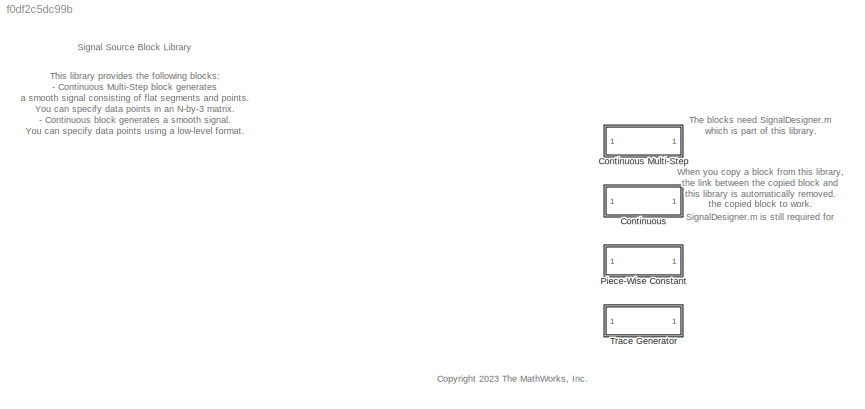
MODEL mdl_f0df2c5dc99b
KIND library
CONFIG AbsTol = auto
CONFIG EnableMultiTasking = off
CONFIG FixedStep = auto
CONFIG MaxStep = auto
CONFIG MinStep = auto
CONFIG RelTol = 1e-3
CONFIG SampleTimeConstraint = Unconstrained
CONFIG SolverName = VariableStepAuto
CONFIG StartTime = 0.0
CONFIG StopTime = 10.0
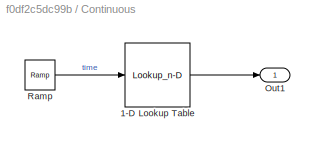
BLOCK [SubSystem] Continuous
  CopyFcn = set_param(gcb, LinkStatus = "none");\nset_param(gcb, CopyFcn = "");
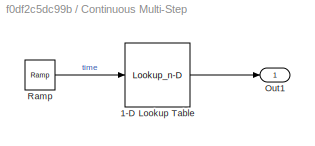
BLOCK [SubSystem] Continuous Multi-Step
  CopyFcn = set_param(gcb, LinkStatus = "none");\nset_param(gcb, CopyFcn = "");
BLOCK [Lookup_n-D] Continuous Multi-Step/1-D Lookup Table
  BreakpointsForDimension1 = sig.Data.X
  InputPortMap = u0
  InternalRulePriority = Speed
  NumberOfTableDimensions = 1
  RndMeth = Simplest
  Table = sig.Data.Y
BLOCK [Outport] Continuous Multi-Step/Out1
BLOCK [Reference] Continuous Multi-Step/Ramp  REF=simulink/Sources/Ramp
  AttributesFormatString = Slope: %<slope>\nStart time: %<start>\nInitial output: %<InitialOutput>
  SourceBlock = simulink/Sources/Ramp
  SourceType = Ramp
BLOCK [Lookup_n-D] Continuous/1-D Lookup Table
  BreakpointsForDimension1 = sig.Data.X
  ExtrapMethod = Clip
  InputPortMap = u0
  InternalRulePriority = Speed
  NumberOfTableDimensions = 1
  RndMeth = Simplest
  Table = sig.Data.Y
  UseLastTableValue = on
BLOCK [Outport] Continuous/Out1
BLOCK [Reference] Continuous/Ramp  REF=simulink/Sources/Ramp
  AttributesFormatString = Slope: %<slope>\nStart time: %<start>\nInitial output: %<InitialOutput>
  SourceBlock = simulink/Sources/Ramp
  SourceType = Ramp
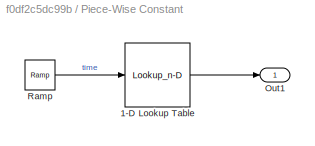
BLOCK [SubSystem] Piece-Wise Constant
  CopyFcn = set_param(gcb, LinkStatus = "none");\nset_param(gcb, CopyFcn = "");
BLOCK [Lookup_n-D] Piece-Wise Constant/1-D Lookup Table
  BreakpointsForDimension1 = sig.Data.X
  InputPortMap = u0
  InternalRulePriority = Speed
  InterpMethod = Flat
  NumberOfTableDimensions = 1
  RndMeth = Simplest
  Table = sig.Data.Y
BLOCK [Outport] Piece-Wise Constant/Out1
BLOCK [Reference] Piece-Wise Constant/Ramp  REF=simulink/Sources/Ramp
  AttributesFormatString = Slope: %<slope>\nStart time: %<start>\nInitial output: %<InitialOutput>
  SourceBlock = simulink/Sources/Ramp
  SourceType = Ramp
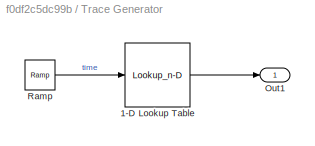
BLOCK [SubSystem] Trace Generator
  CopyFcn = set_param(gcb, LinkStatus = "none");\nset_param(gcb, CopyFcn = "");
BLOCK [Lookup_n-D] Trace Generator/1-D Lookup Table
  BreakpointsForDimension1 = sig.Data.X
  InputPortMap = u0
  InternalRulePriority = Speed
  NumberOfTableDimensions = 1
  RndMeth = Simplest
  Table = sig.Data.Y
BLOCK [Outport] Trace Generator/Out1
BLOCK [Reference] Trace Generator/Ramp  REF=simulink/Sources/Ramp
  AttributesFormatString = Slope: %<slope>\nStart time: %<start>\nInitial output: %<InitialOutput>
  SourceBlock = simulink/Sources/Ramp
  SourceType = Ramp
ANNOTATION (root): The blocks need SignalDesigner.m which is part of this library.
ANNOTATION (root): This library provides the following blocks: - Continuous Multi-Step block generates a smooth signal consisting of flat segments and points. You can specify data points in an N-by-3 matrix. - Continuous block generates a smooth signal. You can specify data points using a low-level format. - Piece-Wise Constant block generates a piece-wise constant discrete signal. - Trace Generator block generates ...<+131ch>
ANNOTATION (root): When you copy a block from this library, the link between the copied block and this library is automatically removed. SignalDesigner.m is still required for the copied block to work.
ANNOTATION (root): Signal Source Block Library
ANNOTATION (root): <copyright redacted>
LINE Continuous Multi-Step/1-D Lookup Table:1 -> Continuous Multi-Step/Out1:1
LINE Continuous Multi-Step/Ramp:1 -> Continuous Multi-Step/1-D Lookup Table:1
LINE Continuous/1-D Lookup Table:1 -> Continuous/Out1:1
LINE Continuous/Ramp:1 -> Continuous/1-D Lookup Table:1
LINE Piece-Wise Constant/1-D Lookup Table:1 -> Piece-Wise Constant/Out1:1
LINE Piece-Wise Constant/Ramp:1 -> Piece-Wise Constant/1-D Lookup Table:1
LINE Trace Generator/1-D Lookup Table:1 -> Trace Generator/Out1:1
LINE Trace Generator/Ramp:1 -> Trace Generator/1-D Lookup Table:1
